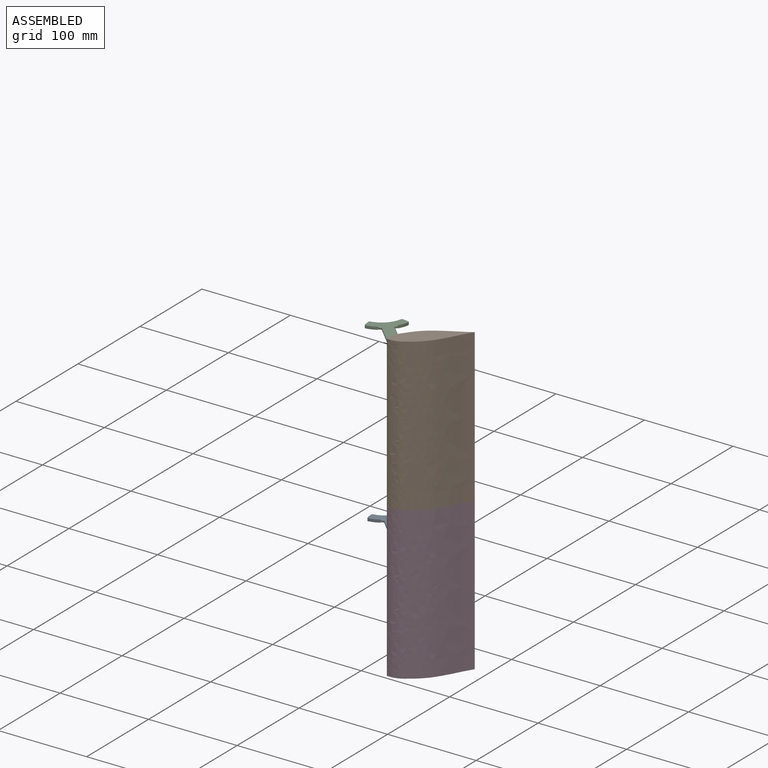
[diagram: assembled view]
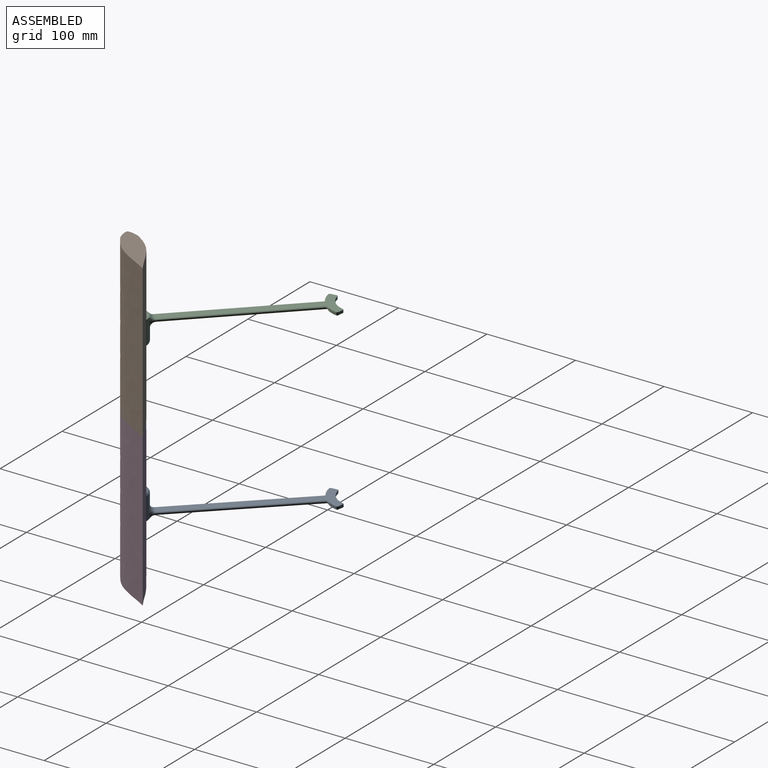
[diagram: assembled view, second angle]
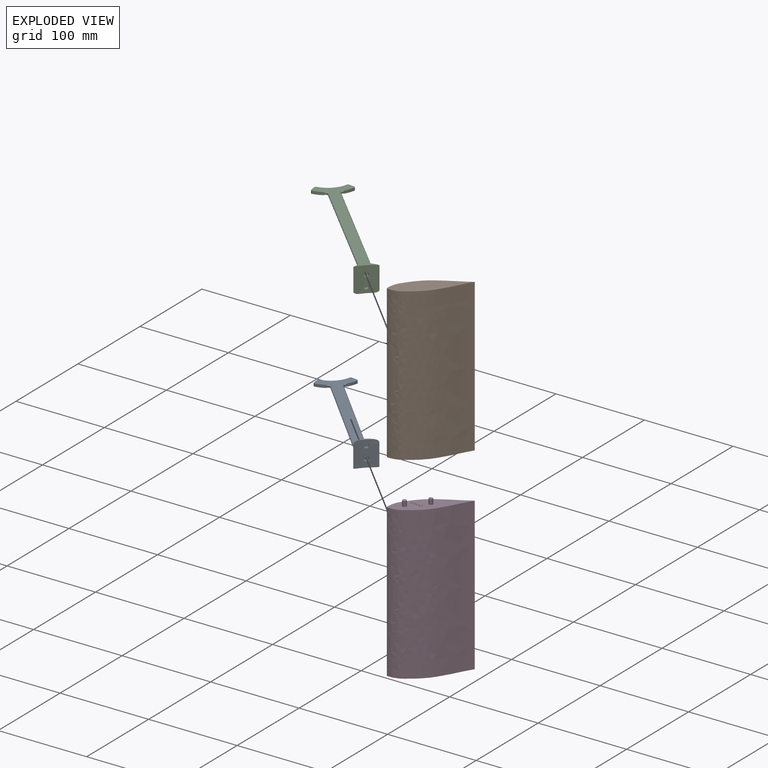
[diagram: exploded view]
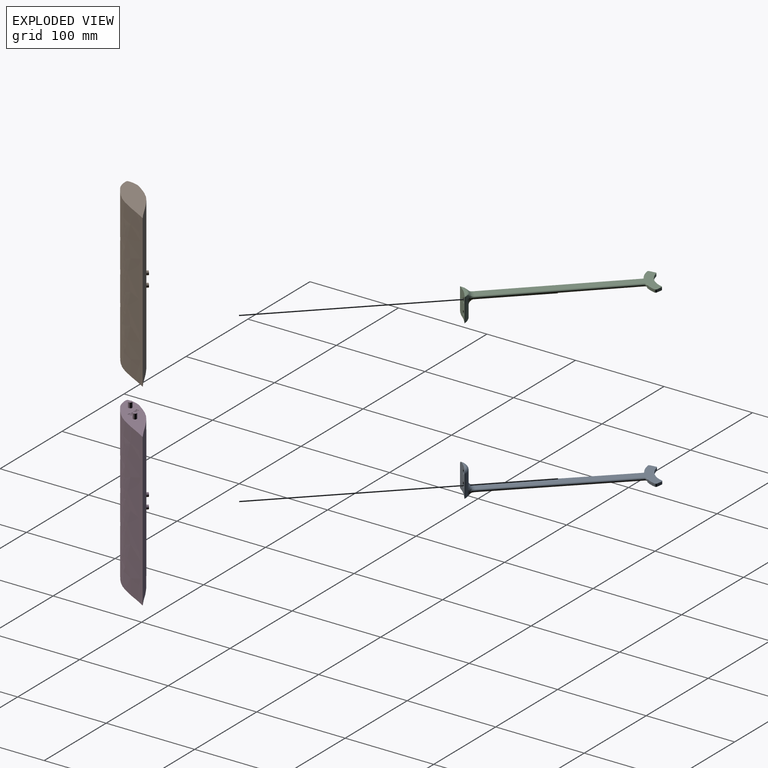
[diagram: exploded view, second angle]
ASSEMBLY  parts=4 mates=3
PART A: 46 faces, bbox 151.1x150.8x31.8 mm
  f0: extruded ~28.58x17.44mm, area 651.4mm2, adj f1,f2,f3,f13,f14,f15,f16,f18
  f1: cylinder r=15.88mm len=24.97mm, axis (0,0,1), area 486.8mm2, adj f0,f37,f38,f39,f40,f41,f42,f43
  f2: plane 9.17x9.13mm, normal (0,0,-1), area 12.5mm2, adj f0,f45
  f3: plane 13.7x13.64mm, normal (0,0,1), area 40mm2, adj f0,f44
  f4: plane 114.57x114.57mm, normal (0.71,0.71,0), area 4.1mm2, adj f20,f30,f32,f39
  f5: cylinder r=34.92mm len=12.53mm, axis (0,0,-1), area 40.1mm2, adj f11,f12,f20,f21,f31,f33
  f6: plane 6.3x3.18mm, normal (0.13,0.99,0), area 20.2mm2, adj f11,f12,f21,f22
  f7: cylinder r=25.4mm len=20.15mm, axis (0,0,-1), area 96.1mm2, adj f11,f12,f22,f23
  f8: plane 6.3x3.18mm, normal (-0.99,-0.13,0), area 20.2mm2, adj f11,f12,f23,f24
  f9: cylinder r=34.92mm len=12.53mm, axis (0,0,-1), area 40.1mm2, adj f11,f12,f24,f25,f27,f29
  f10: plane 114.57x114.57mm, normal (-0.71,-0.71,0), area 4.1mm2, adj f25,f26,f28,f40
  f11: plane 137.81x137.81mm, normal (0,0,1), area 1889.2mm2, adj f5,f6,f7,f8,f9,f21,f22,f23
  f12: plane 137.19x137.19mm, normal (0,0,-1), area 1881mm2, adj f5,f6,f7,f8,f9,f21,f22,f23
  f13: plane 2.63x2.59mm, normal (0.71,0.7,0), area 2.8mm2, adj f0,f14,f16,f17
  f14: cylinder r=2.54mm len=6.21mm, axis (0.7,-0.71,0), area 29.2mm2, adj f0,f13,f15,f17
  f15: plane 2.59x2.55mm, normal (-0.71,-0.7,0), area 2.8mm2, adj f0,f14,f16,f17
  f16: cylinder r=2.54mm len=6.21mm, axis (0.7,-0.71,0), area 29.2mm2, adj f0,f13,f15,f17
  f17: plane 5.84x3.62mm, normal (0.7,-0.71,0), area 24.1mm2, adj f13,f14,f15,f16
  f18: cylinder r=2.54mm len=6.17mm, axis (0.7,-0.71,0), area 57.9mm2, adj f0,f19
  f19: plane 5.08x3.62mm, normal (0.7,-0.71,0), area 20.3mm2, adj f18
  f20: cylinder r=1.59mm len=1.97mm, axis (0,0,-1), area 0.1mm2, adj f4,f5,f31,f33
  f21: cylinder r=1.59mm len=3.18mm, axis (0,0,-1), area 8.2mm2, adj f5,f6,f11,f12
  f22: cylinder r=1.59mm len=3.18mm, axis (0,0,-1), area 7.6mm2, adj f6,f7,f11,f12
  f23: cylinder r=1.59mm len=3.18mm, axis (0,0,-1), area 7.6mm2, adj f7,f8,f11,f12
  f24: cylinder r=1.59mm len=3.18mm, axis (0,0,-1), area 8.2mm2, adj f8,f9,f11,f12
  f25: cylinder r=1.59mm len=1.97mm, axis (0,0,-1), area 0.1mm2, adj f9,f10,f27,f29
  f26: cylinder r=1.57mm len=115.68mm, axis (-0.71,0.71,0), area 397.7mm2, adj f10,f11,f27,f36,f38
  f27: torus R=3.16mm, axis (0,0,1), area 10.3mm2, adj f9,f11,f25,f26
  f28: cylinder r=1.57mm len=115.68mm, axis (0.71,-0.71,0), area 396.5mm2, adj f10,f12,f29,f42
  f29: torus R=3.16mm, axis (0,0,1), area 10.3mm2, adj f9,f12,f25,f28
  f30: cylinder r=1.57mm len=115.68mm, axis (0.71,-0.71,0), area 397.7mm2, adj f4,f11,f31,f35,f37
  f31: torus R=3.16mm, axis (0,0,1), area 10.3mm2, adj f5,f11,f20,f30
  f32: cylinder r=1.57mm len=115.68mm, axis (-0.71,0.71,0), area 396.5mm2, adj f4,f12,f33,f41
  f33: torus R=3.16mm, axis (0,0,1), area 10.3mm2, adj f5,f12,f20,f32
  f34: torus R=21.37mm, axis (0,0,1), area 45.4mm2, adj f11,f35,f36,f44
  f35: bspline ~8.01x5.26mm, area 12.7mm2, adj f30,f34,f37,f44
  f36: bspline ~8.01x5.26mm, area 12.7mm2, adj f26,f34,f38,f44
  f37: bspline ~6.99x6.84mm, area 18.8mm2, adj f1,f30,f35,f39,f44
  f38: bspline ~7.24x6.96mm, area 18.8mm2, adj f1,f26,f36,f40,f44
  f39: cylinder r=6.35mm len=5.61mm, axis (0,0,1), area 0.2mm2, adj f1,f4,f37,f41
  f40: cylinder r=6.35mm len=5.61mm, axis (0,0,1), area 0.2mm2, adj f1,f10,f38,f42
  f41: bspline ~9.62x9.5mm, area 48.1mm2, adj f1,f32,f39,f43
  f42: bspline ~9.5x9.3mm, area 48.1mm2, adj f1,f28,f40,f43
  f43: torus R=22.23mm, axis (0,0,1), area 78.5mm2, adj f1,f12,f41,f42
  f44: torus R=14.27mm, axis (0,0,-1), area 52.9mm2, adj f0,f1,f3,f34,f35,f36,f37,f38
  f45: torus R=12.7mm, axis (0,0,1), area 104.7mm2, adj f0,f1,f2
PART B: 16 faces, bbox 59.3x59.3x172.1 mm
  f0: extruded ~172.09x58.84mm, area 15001.1mm2, adj f1,f2,f3,f13,f15
  f1: extruded ~172.09x58.84mm, area 15033mm2, adj f0,f2,f3
  f2: plane 59.32x59.32mm, normal (0,0,1), area 1208mm2, adj f0,f1
  f3: plane 59.32x59.32mm, normal (0,0,-1), area 1142.1mm2, adj f0,f1,f4,f8
  f4: cone r=1.63mm half-angle=41deg, axis (0,0,-1), area 18.7mm2, adj f3,f6
  f5: plane 5.13x5.13mm, normal (0,0,-1), area 16.1mm2, adj f6,f7
  f6: cylinder r=2.57mm len=6.08mm, axis (0,0,-1), area 98.1mm2, adj f4,f5
  f7: cone r=0mm half-angle=59deg, axis (0,0,-1), area 5.4mm2, adj f5
  f8: cone r=1.63mm half-angle=41deg, axis (0,0,-1), area 18.7mm2, adj f3,f10
  f9: plane 5.13x5.13mm, normal (0,0,-1), area 16.1mm2, adj f10,f11
  f10: cylinder r=2.57mm len=6.08mm, axis (0,0,-1), area 98.1mm2, adj f8,f9
  f11: cone r=0mm half-angle=59deg, axis (0,0,-1), area 5.4mm2, adj f9
  f12: plane 4.5x3.2mm, normal (-0.7,0.71,0), area 15.9mm2, adj f13
  f13: cylinder r=2.25mm len=5.42mm, axis (0.7,-0.71,0), area 44.1mm2, adj f0,f12
  f14: plane 4.5x3.2mm, normal (-0.7,0.71,0), area 15.9mm2, adj f15
  f15: cylinder r=2.25mm len=5.42mm, axis (0.7,-0.71,0), area 44.1mm2, adj f0,f14
PART C: same geometry as A
PART D: 93 faces, bbox 59.3x59.3x177.9 mm
  f0: plane 59.32x59.32mm, normal (0,0,1), area 1155mm2, adj f1,f2,f4,f6,f12,f13,f14,f15
  f1: extruded ~172.09x58.84mm, area 15001.1mm2, adj f0,f2,f3,f9,f11
  f2: extruded ~172.09x58.84mm, area 15033mm2, adj f0,f1,f3
  f3: plane 59.32x59.32mm, normal (0,0,-1), area 1208mm2, adj f1,f2
  f4: cylinder r=2.2mm len=5.84mm, axis (0,0,-1), area 80.6mm2, adj f0,f5
  f5: plane 4.39x4.39mm, normal (0,0,1), area 15.2mm2, adj f4
  f6: cylinder r=2.2mm len=5.84mm, axis (0,0,-1), area 80.6mm2, adj f0,f7
  f7: plane 4.39x4.39mm, normal (0,0,1), area 15.2mm2, adj f6
  f8: plane 4.5x3.2mm, normal (-0.7,0.71,0), area 15.9mm2, adj f9
  f9: cylinder r=2.25mm len=5.42mm, axis (0.7,-0.71,0), area 44.1mm2, adj f1,f8
  f10: plane 4.5x3.2mm, normal (-0.7,0.71,0), area 15.9mm2, adj f11
  f11: cylinder r=2.25mm len=5.42mm, axis (0.7,-0.71,0), area 44.1mm2, adj f1,f10
  f12: plane 0.51x0.5mm, normal (0,-1,0), area 0.3mm2, adj f0,f13,f34,f35
  f13: plane 1.63x0.51mm, normal (-0.95,-0.3,0), area 0.9mm2, adj f0,f12,f14,f35
  f14: extruded ~0.68x0.51mm, area 0.4mm2, adj f0,f13,f15,f35
  f15: plane 0.51x0.02mm, normal (0,-1,0), area 0mm2, adj f0,f14,f16,f35
  f16: extruded ~0.68x0.51mm, area 0.4mm2, adj f0,f15,f17,f35
  f17: plane 1.62x0.52mm, normal (0.95,-0.31,0), area 0.9mm2, adj f0,f16,f18,f35
  f18: plane 0.51x0.49mm, normal (0,-1,0), area 0.2mm2, adj f0,f17,f19,f35
  f19: plane 2.77x0.76mm, normal (-0.96,-0.26,0), area 1.5mm2, adj f0,f18,f20,f35
  f20: plane 0.51x0.44mm, normal (0,1,0), area 0.2mm2, adj f0,f19,f21,f35
  f21: extruded ~1.59x0.51mm, area 0.8mm2, adj f0,f20,f22,f35
  f22: extruded ~0.74x0.51mm, area 0.4mm2, adj f0,f21,f23,f35
  f23: plane 0.51x0.02mm, normal (0,1,0), area 0mm2, adj f0,f22,f24,f35
  f24: extruded ~0.51x0.37mm, area 0.2mm2, adj f0,f23,f25,f35
  f25: extruded ~0.51x0.36mm, area 0.2mm2, adj f0,f24,f26,f35
  f26: plane 1.59x0.51mm, normal (-0.95,0.3,0), area 0.8mm2, adj f0,f25,f27,f35
  f27: plane 0.51x0.46mm, normal (0,1,0), area 0.2mm2, adj f0,f26,f28,f35
  f28: plane 1.59x0.51mm, normal (0.95,0.3,0), area 0.8mm2, adj f0,f27,f29,f35
  f29: extruded ~0.73x0.51mm, area 0.4mm2, adj f0,f28,f30,f35
  f30: plane 0.51x0.02mm, normal (0,1,0), area 0mm2, adj f0,f29,f31,f35
  f31: extruded ~0.51x0.28mm, area 0.1mm2, adj f0,f30,f32,f35
  f32: extruded ~2.04x0.53mm, area 1.1mm2, adj f0,f31,f33,f35
  f33: plane 0.51x0.44mm, normal (0,1,0), area 0.2mm2, adj f0,f32,f34,f35
  f34: plane 2.77x0.77mm, normal (0.96,-0.27,0), area 1.5mm2, adj f0,f12,f33,f35
  f35: plane 3.92x2.77mm, normal (0,0,1), area 4.2mm2, adj f12,f13,f14,f15,f16,f17,f18,f19
  f36: extruded ~1.05x0.51mm, area 0.6mm2, adj f0,f37,f52,f53
  f37: extruded ~1.06x0.51mm, area 0.6mm2, adj f0,f36,f38,f53
  f38: extruded ~0.94x0.51mm, area 0.5mm2, adj f0,f37,f39,f53
  f39: extruded ~0.66x0.51mm, area 0.4mm2, adj f0,f38,f40,f53
  f40: extruded ~0.51x0.5mm, area 0.3mm2, adj f0,f39,f41,f53
  f41: extruded ~0.76x0.51mm, area 0.4mm2, adj f0,f40,f42,f53
  f42: extruded ~1.06x0.51mm, area 0.6mm2, adj f0,f41,f43,f53
  f43: extruded ~0.94x0.51mm, area 0.5mm2, adj f0,f42,f52,f53
  f44: extruded ~0.81x0.51mm, area 0.4mm2, adj f45,f51,f53,f54
  f45: extruded ~0.81x0.51mm, area 0.4mm2, adj f44,f46,f53,f54
  f46: extruded ~0.63x0.51mm, area 0.4mm2, adj f45,f47,f53,f54
  f47: extruded ~0.63x0.51mm, area 0.4mm2, adj f46,f48,f53,f54
  f48: extruded ~0.81x0.51mm, area 0.4mm2, adj f47,f49,f53,f54
  f49: extruded ~0.8x0.51mm, area 0.4mm2, adj f48,f50,f53,f54
  f50: extruded ~0.63x0.51mm, area 0.4mm2, adj f49,f51,f53,f54
  f51: extruded ~0.62x0.51mm, area 0.4mm2, adj f44,f50,f53,f54
  f52: extruded ~0.92x0.51mm, area 0.5mm2, adj f0,f36,f43,f53
  f53: plane 2.88x2.55mm, normal (0,0,1), area 3mm2, adj f36,f37,f38,f39,f40,f41,f42,f43
  f54: plane 2.17x1.68mm, normal (0,0,1), area 3mm2, adj f44,f45,f46,f47,f48,f49,f50,f51
  f55: extruded ~1.34x0.51mm, area 0.7mm2, adj f0,f56,f68,f69
  f56: extruded ~1.4x0.51mm, area 0.8mm2, adj f0,f55,f57,f69
  f57: extruded ~1.43x0.51mm, area 0.8mm2, adj f0,f56,f58,f69
  f58: plane 1.03x0.51mm, normal (0,-1,0), area 0.5mm2, adj f0,f57,f59,f69
  f59: plane 3.7x0.51mm, normal (-1,0,0), area 1.9mm2, adj f0,f58,f60,f69
  f60: plane 1.13x0.51mm, normal (0,1,0), area 0.6mm2, adj f0,f59,f68,f69
  f61: extruded ~1.12x0.51mm, area 0.6mm2, adj f62,f67,f69,f70
  f62: extruded ~1.09x0.51mm, area 0.6mm2, adj f61,f63,f69,f70
  f63: extruded ~1.08x0.51mm, area 0.6mm2, adj f62,f64,f69,f70
  f64: plane 0.63x0.51mm, normal (0,-1,0), area 0.3mm2, adj f63,f65,f69,f70
  f65: plane 2.96x0.51mm, normal (1,0,0), area 1.5mm2, adj f64,f66,f69,f70
  f66: plane 0.52x0.51mm, normal (0,1,0), area 0.3mm2, adj f65,f67,f69,f70
  f67: extruded ~1.16x0.51mm, area 0.6mm2, adj f61,f66,f69,f70
  f68: extruded ~1.34x0.51mm, area 0.7mm2, adj f0,f55,f60,f69
  f69: plane 3.7x2.95mm, normal (0,0,1), area 4.3mm2, adj f55,f56,f57,f58,f59,f60,f61,f62
  f70: plane 2.96x2.07mm, normal (0,0,1), area 5.4mm2, adj f61,f62,f63,f64,f65,f66,f67
  f71: plane 0.51x0.42mm, normal (0,-1,0), area 0.2mm2, adj f0,f72,f87,f88
  f72: plane 1.8x0.51mm, normal (-1,0,0), area 0.9mm2, adj f0,f71,f73,f88
  f73: extruded ~0.51x0.51mm, area 0.3mm2, adj f0,f72,f74,f88
  f74: extruded ~0.51x0.48mm, area 0.3mm2, adj f0,f73,f75,f88
  f75: extruded ~0.64x0.51mm, area 0.4mm2, adj f0,f74,f76,f88
  f76: extruded ~0.78x0.51mm, area 0.4mm2, adj f0,f75,f77,f88
  f77: plane 1.46x0.51mm, normal (1,0,0), area 0.7mm2, adj f0,f76,f78,f88
  f78: plane 0.51x0.42mm, normal (0,-1,0), area 0.2mm2, adj f0,f77,f79,f88
  f79: plane 2.77x0.51mm, normal (-1,0,0), area 1.4mm2, adj f0,f78,f80,f88
  f80: plane 0.51x0.34mm, normal (0,1,0), area 0.2mm2, adj f0,f79,f81,f88
  f81: plane 0.51x0.38mm, normal (0.98,0.18,0), area 0.2mm2, adj f0,f80,f82,f88
  f82: plane 0.51x0.02mm, normal (0,1,0), area 0mm2, adj f0,f81,f83,f88
  f83: extruded ~0.51x0.36mm, area 0.2mm2, adj f0,f82,f84,f88
  f84: extruded ~0.52x0.51mm, area 0.3mm2, adj f0,f83,f85,f88
  f85: extruded ~0.75x0.51mm, area 0.4mm2, adj f0,f84,f86,f88
  f86: extruded ~0.77x0.51mm, area 0.4mm2, adj f0,f85,f87,f88
  f87: plane 1.81x0.51mm, normal (1,0,0), area 0.9mm2, adj f0,f71,f86,f88
  f88: plane 2.83x2.32mm, normal (0,0,1), area 2.8mm2, adj f71,f72,f73,f74,f75,f76,f77,f78
  f89: cone r=0mm half-angle=59deg, axis (0,0,-1), area 2.3mm2, adj f90
  f90: plane 1.57x1.57mm, normal (0,0,1), area 1.9mm2, adj f89
  f91: cone r=0mm half-angle=59deg, axis (0,0,-1), area 2.3mm2, adj f92
  f92: plane 1.57x1.57mm, normal (0,0,1), area 1.9mm2, adj f91
PLACE A rot(axis=(-0.7,0.71,0),180deg) t=(33.26,33.49,-154.07)mm
PLACE B t=(30.84,31.81,33.56)mm
PLACE C rot(axis=(0.7,-0.71,0),0deg) t=(31.19,31.45,33.56)mm
PLACE D t=(30.84,31.81,33.56)mm
MATE fastened D.f4 <-> B.f8  axis (0,0,1) through (171.83,-132.53,-58.89)mm
MATE fastened C.f17 <-> B.f13  axis (0.7,-0.71,0) through (173.36,-110.67,33.69)mm
MATE fastened A.f17 <-> D.f11  axis (0.7,-0.71,0) through (173.36,-110.67,-154.19)mm
